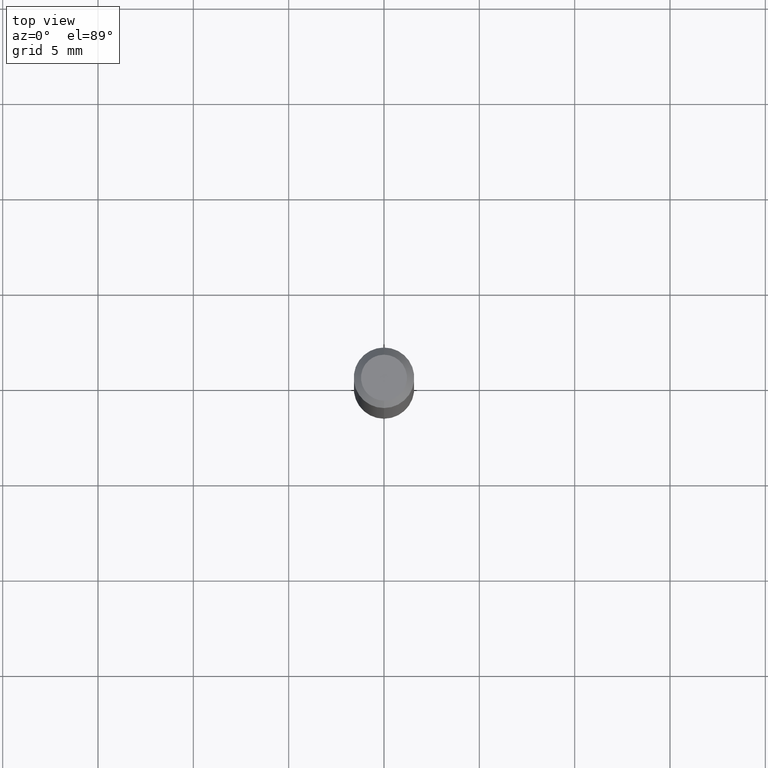
[diagram: clean part render]
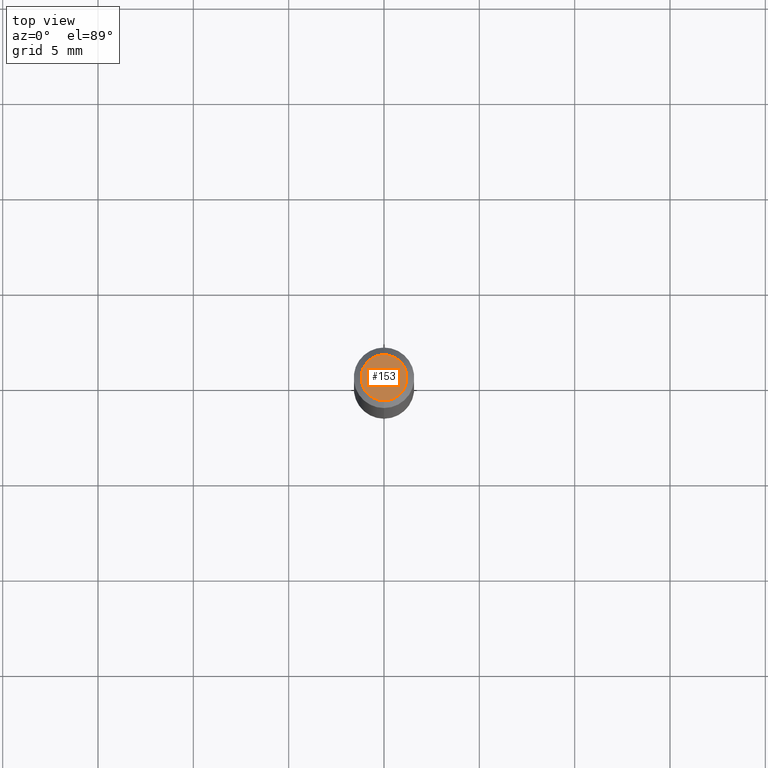
[diagram: same view with one face highlighted and labeled with its STEP entity id]
A machine part, top view. The second image highlights one B-rep face of the part: STEP entity #153.
In plain terms, the highlighted planar face has unit normal (0, -0, -1).
Its self-contained STEP definition (entity closure, byte-faithful):
#5 = CARTESIAN_POINT ( 'NONE',  ( 3.316907271900976096E-16, 0.04749999999999999362, -3.299189830042509647E-16 ) ) ;
#10 = ORIENTED_EDGE ( 'NONE', *, *, #46, .T. ) ;
#36 = CIRCLE ( 'NONE', #442, 0.04749999999999999362 ) ;
#46 = EDGE_CURVE ( 'NONE', #78, #396, #120, .T. ) ;
#78 = VERTEX_POINT ( 'NONE', #433 ) ;
#93 = DIRECTION ( 'NONE',  ( -6.982962677686266711E-15, -1.000000000000000000, 3.491487467395637572E-15 ) ) ;
#114 = EDGE_LOOP ( 'NONE', ( #10, #352 ) ) ;
#119 = DIRECTION ( 'NONE',  ( -6.982962677686266711E-15, -1.000000000000000000, 3.491487467395637572E-15 ) ) ;
#120 = CIRCLE ( 'NONE', #181, 0.04749999999999999362 ) ;
#150 = DIRECTION ( 'NONE',  ( -2.445464526639804686E-29, 3.491487467395637572E-15, 1.000000000000000000 ) ) ;
#152 = CARTESIAN_POINT ( 'NONE',  ( -3.773273898774340269E-16, -0.04749999999999999362, -1.623010019046235380E-16 ) ) ;
#153 = ADVANCED_FACE ( 'NONE', ( #387 ), #191, .F. ) ;
#170 = CARTESIAN_POINT ( 'NONE',  ( 8.024710082652215884E-45, -1.145719939007336603E-30, -3.281466566059163187E-16 ) ) ;
#181 = AXIS2_PLACEMENT_3D ( 'NONE', #512, #150, #119 ) ;
#191 = PLANE ( 'NONE',  #245 ) ;
#245 = AXIS2_PLACEMENT_3D ( 'NONE', #5, #358, #315 ) ;
#289 = DIRECTION ( 'NONE',  ( -2.445464526639804686E-29, 3.491487467395637572E-15, 1.000000000000000000 ) ) ;
#315 = DIRECTION ( 'NONE',  ( 6.982962677686265922E-15, 1.000000000000000000, -3.491487467395637572E-15 ) ) ;
#352 = ORIENTED_EDGE ( 'NONE', *, *, #503, .T. ) ;
#358 = DIRECTION ( 'NONE',  ( 2.445464526639804406E-29, -3.491487467395637572E-15, -1.000000000000000000 ) ) ;
#387 = FACE_OUTER_BOUND ( 'NONE', #114, .T. ) ;
#396 = VERTEX_POINT ( 'NONE', #152 ) ;
#433 = CARTESIAN_POINT ( 'NONE',  ( 3.840629472727447874E-16, 0.04749999999999999362, -4.939923113072090255E-16 ) ) ;
#442 = AXIS2_PLACEMENT_3D ( 'NONE', #170, #289, #93 ) ;
#503 = EDGE_CURVE ( 'NONE', #396, #78, #36, .T. ) ;
#512 = CARTESIAN_POINT ( 'NONE',  ( 8.024710082652215884E-45, -1.145719939007336603E-30, -3.281466566059163187E-16 ) ) ;